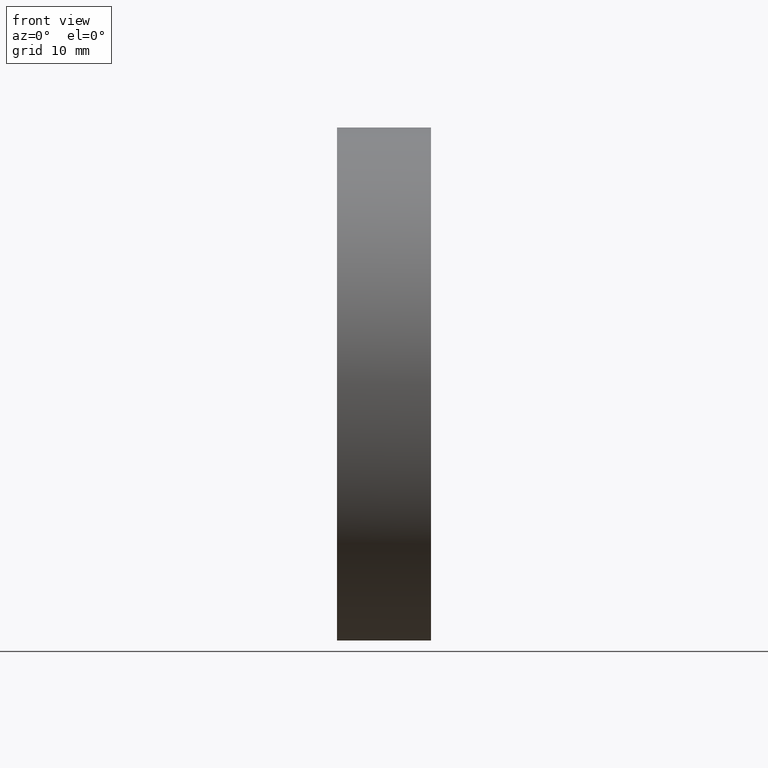
[diagram: clean part render]
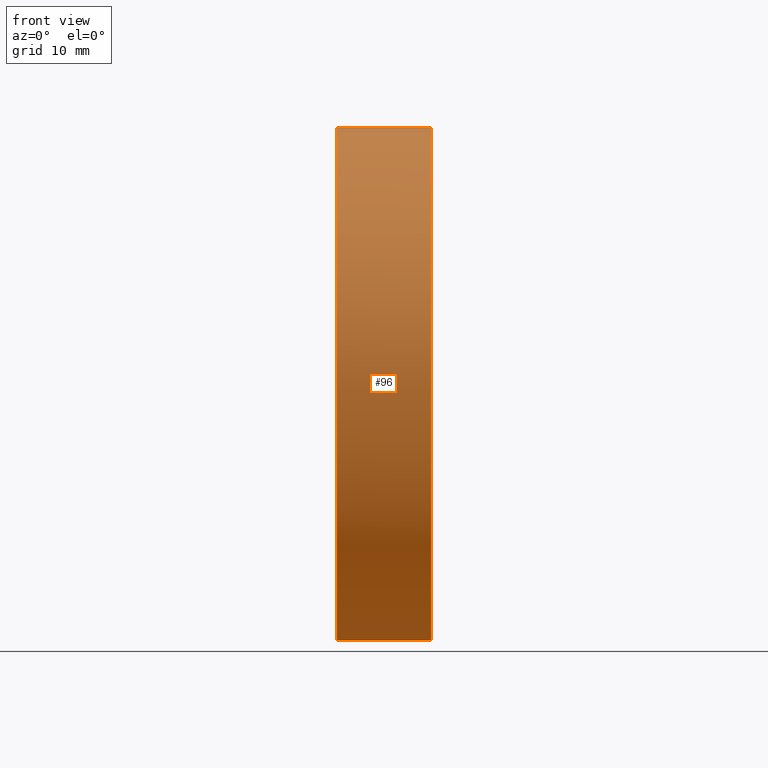
[diagram: same view with one face highlighted and labeled with its STEP entity id]
A machine part, front view. The second image highlights one B-rep face of the part: STEP entity #96.
In plain terms, the highlighted cylindrical surface (partial cylindrical patch) has radius 37.5 mm, axis along (-1, -0, -0).
Its self-contained STEP definition (entity closure, byte-faithful):
#5 = EDGE_CURVE ( 'NONE', #90, #164, #162, .T. ) ;
#6 = ORIENTED_EDGE ( 'NONE', *, *, #148, .T. ) ;
#7 = AXIS2_PLACEMENT_3D ( 'NONE', #86, #98, #154 ) ;
#18 = ORIENTED_EDGE ( 'NONE', *, *, #47, .T. ) ;
#25 = CARTESIAN_POINT ( 'NONE',  ( 217.9702860043302100, 138.7560422467448700, -37.50000000000000700 ) ) ;
#26 = DIRECTION ( 'NONE',  ( -1.000000000000000000, -0.0000000000000000000, -0.0000000000000000000 ) ) ;
#40 = CARTESIAN_POINT ( 'NONE',  ( 230.1996119052661200, 138.7560422467448700, -37.50000000000000700 ) ) ;
#42 = ORIENTED_EDGE ( 'NONE', *, *, #115, .F. ) ;
#45 = CYLINDRICAL_SURFACE ( 'NONE', #163, 37.50000000000000700 ) ;
#47 = EDGE_CURVE ( 'NONE', #113, #70, #136, .T. ) ;
#51 = DIRECTION ( 'NONE',  ( 0.0000000000000000000, 0.0000000000000000000, 1.000000000000000000 ) ) ;
#52 = CARTESIAN_POINT ( 'NONE',  ( 217.9702860043302100, 138.7560422467448700, 37.50000000000000700 ) ) ;
#55 = VECTOR ( 'NONE', #110, 1000.000000000000000 ) ;
#58 = CIRCLE ( 'NONE', #7, 37.50000000000000700 ) ;
#59 = AXIS2_PLACEMENT_3D ( 'NONE', #138, #97, #78 ) ;
#65 = DIRECTION ( 'NONE',  ( -1.000000000000000000, -0.0000000000000000000, -0.0000000000000000000 ) ) ;
#70 = VERTEX_POINT ( 'NONE', #169 ) ;
#75 = FACE_OUTER_BOUND ( 'NONE', #166, .T. ) ;
#78 = DIRECTION ( 'NONE',  ( 0.0000000000000000000, 0.0000000000000000000, 1.000000000000000000 ) ) ;
#81 = CARTESIAN_POINT ( 'NONE',  ( 243.9627364224879800, 101.2560422467449000, 0.0000000000000000000 ) ) ;
#83 = DIRECTION ( 'NONE',  ( 0.0000000000000000000, 0.0000000000000000000, 1.000000000000000000 ) ) ;
#86 = CARTESIAN_POINT ( 'NONE',  ( 230.1996119052661200, 138.7560422467448700, 0.0000000000000000000 ) ) ;
#90 = VERTEX_POINT ( 'NONE', #109 ) ;
#93 = VECTOR ( 'NONE', #65, 1000.000000000000000 ) ;
#94 = CARTESIAN_POINT ( 'NONE',  ( 217.9702860043302100, 138.7560422467448700, 0.0000000000000000000 ) ) ;
#96 = ADVANCED_FACE ( 'NONE', ( #75 ), #45, .T. ) ;
#97 = DIRECTION ( 'NONE',  ( -1.000000000000000000, -0.0000000000000000000, -0.0000000000000000000 ) ) ;
#98 = DIRECTION ( 'NONE',  ( -1.000000000000000000, -0.0000000000000000000, -0.0000000000000000000 ) ) ;
#108 = DIRECTION ( 'NONE',  ( -1.000000000000000000, -0.0000000000000000000, -0.0000000000000000000 ) ) ;
#109 = CARTESIAN_POINT ( 'NONE',  ( 243.9627364224879800, 138.7560422467448700, -37.50000000000000700 ) ) ;
#110 = DIRECTION ( 'NONE',  ( -1.000000000000000000, -0.0000000000000000000, -0.0000000000000000000 ) ) ;
#113 = VERTEX_POINT ( 'NONE', #81 ) ;
#115 = EDGE_CURVE ( 'NONE', #164, #116, #58, .T. ) ;
#116 = VERTEX_POINT ( 'NONE', #156 ) ;
#119 = AXIS2_PLACEMENT_3D ( 'NONE', #140, #108, #83 ) ;
#125 = ORIENTED_EDGE ( 'NONE', *, *, #5, .F. ) ;
#136 = CIRCLE ( 'NONE', #59, 37.50000000000000700 ) ;
#138 = CARTESIAN_POINT ( 'NONE',  ( 243.9627364224879800, 138.7560422467448700, 0.0000000000000000000 ) ) ;
#140 = CARTESIAN_POINT ( 'NONE',  ( 243.9627364224879800, 138.7560422467448700, 0.0000000000000000000 ) ) ;
#148 = EDGE_CURVE ( 'NONE', #90, #113, #155, .T. ) ;
#149 = ORIENTED_EDGE ( 'NONE', *, *, #179, .T. ) ;
#154 = DIRECTION ( 'NONE',  ( 0.0000000000000000000, 0.0000000000000000000, 1.000000000000000000 ) ) ;
#155 = CIRCLE ( 'NONE', #119, 37.50000000000000700 ) ;
#156 = CARTESIAN_POINT ( 'NONE',  ( 230.1996119052661200, 138.7560422467448700, 37.50000000000000700 ) ) ;
#162 = LINE ( 'NONE', #25, #93 ) ;
#163 = AXIS2_PLACEMENT_3D ( 'NONE', #94, #26, #51 ) ;
#164 = VERTEX_POINT ( 'NONE', #40 ) ;
#166 = EDGE_LOOP ( 'NONE', ( #125, #6, #18, #149, #42 ) ) ;
#169 = CARTESIAN_POINT ( 'NONE',  ( 243.9627364224879800, 138.7560422467448700, 37.50000000000000700 ) ) ;
#173 = LINE ( 'NONE', #52, #55 ) ;
#179 = EDGE_CURVE ( 'NONE', #70, #116, #173, .T. ) ;